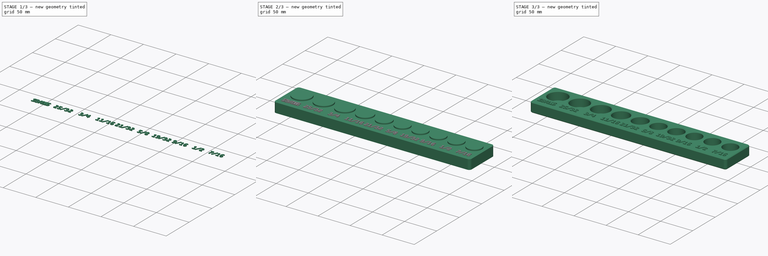
[diagram: build sequence overview — one tinted view per stage of 3, left to right]
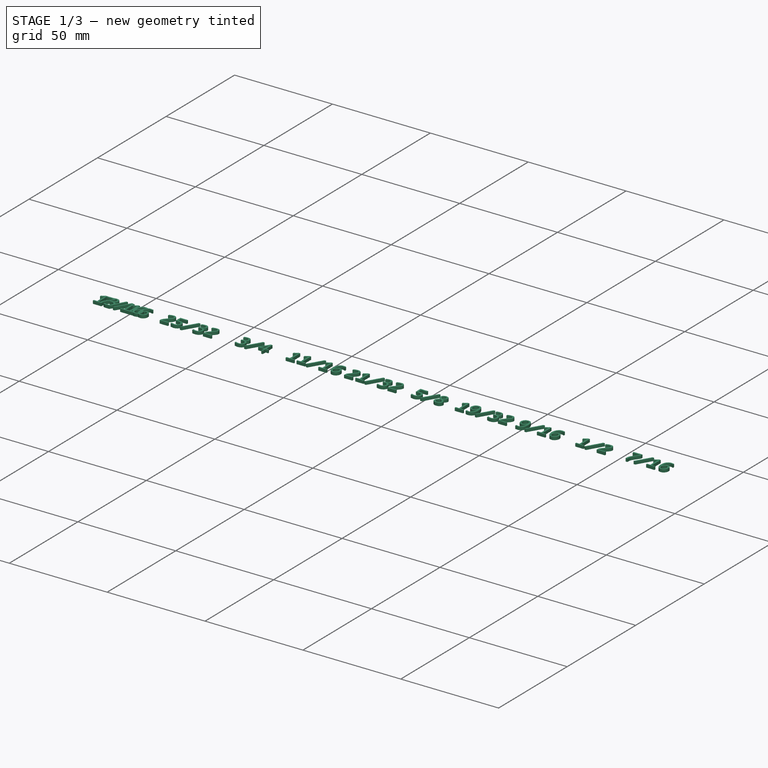
[diagram: stage 1 of 3 — iso view after this stage's code; geometry added in this stage tinted green]
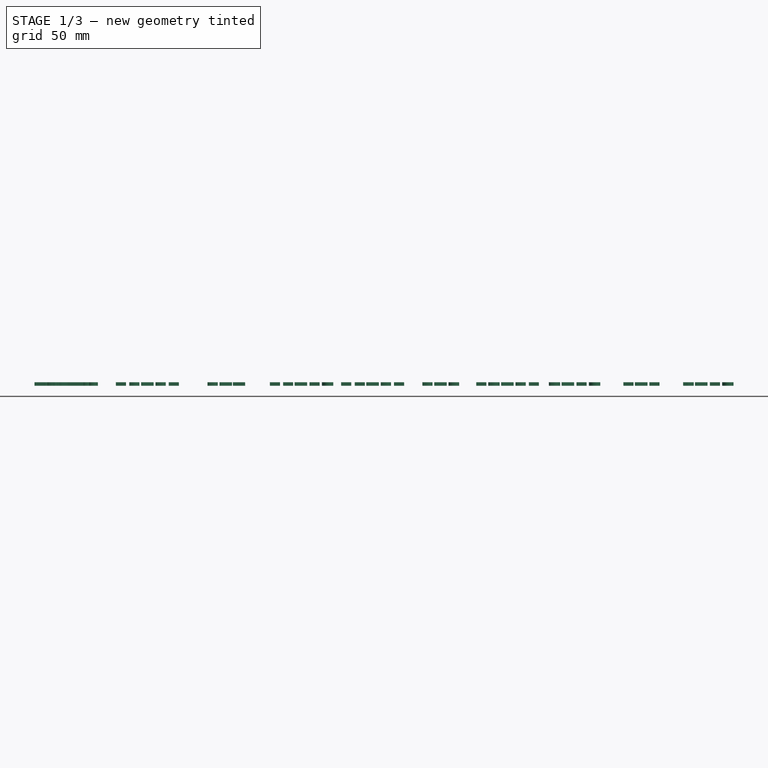
[diagram: stage 1 of 3 — front view after this stage's code; geometry added in this stage tinted green]
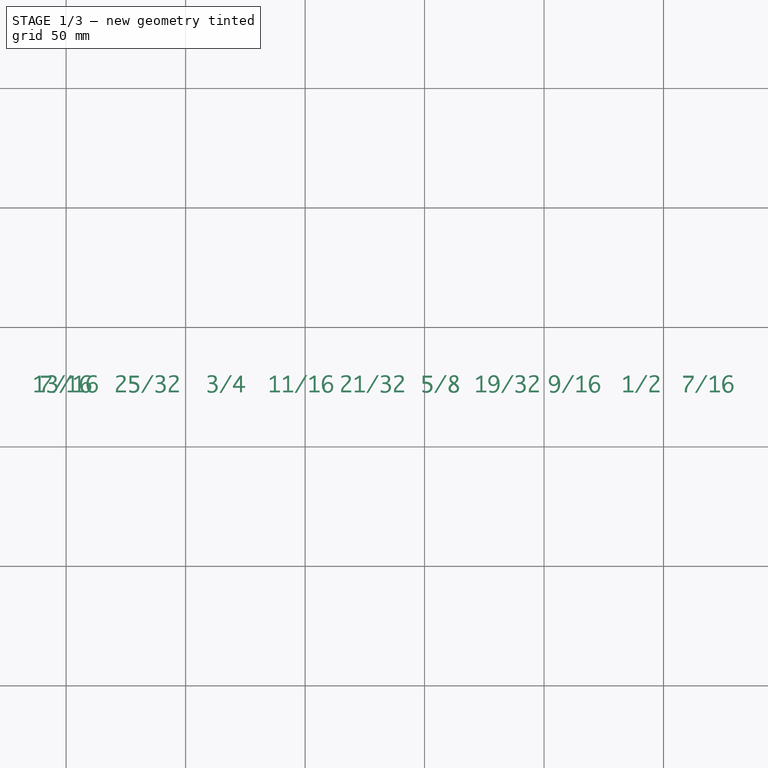
[diagram: stage 1 of 3 — top view after this stage's code; geometry added in this stage tinted green]
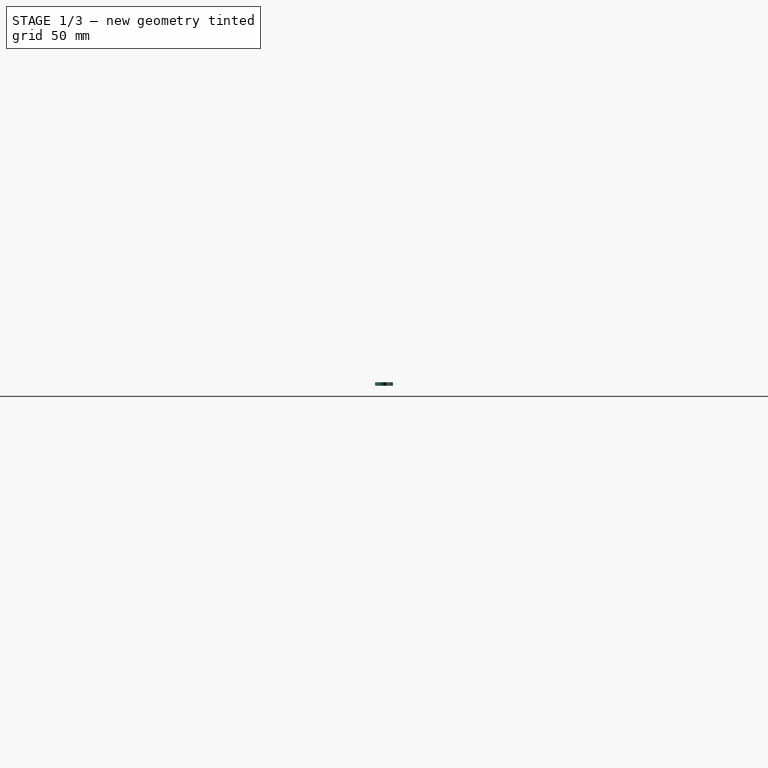
[diagram: stage 1 of 3 — right view after this stage's code; geometry added in this stage tinted green]
FCSTD DOCUMENT  (FreeCAD 0.22R38314 (Git))
Label: socket tray
License: All rights reserved
LicenseURL: http://en.wikipedia.org/wiki/All_rights_reserved
objects: Part::Extrusion×3, Sketcher::SketchObject×2, Part::FeaturePython×2, Spreadsheet::Sheet×1, Part::Cut×1, Part::Chamfer×1, Part::Part2DObjectPython×1
note: 10 computed .brp shape members not serialized (recipe doc carries the construction recipe); baked Part::Feature solids carry a one-line shape summary decoded from their .brp

FEATURE [Part::Part2DObjectPython] ShapeString  # Draft 2D object (typed FeaturePython)
  FontFile = /System/Library/Fonts/monaco.ttf
  Fuse = false
  Justification = 1
  JustificationReference = 0
  KeepLeftMargin = false
  MakeFace = true
  ObliqueAngle = 0
  Placement = pos=(0,-20.25,14.9) rot=(0,0,1;0rad)
  ScaleToSize = true
  Size = 7
  Tracking = 0
  expr: .Placement.Base.y = <<q>>.text_y
  expr: .Placement.Base.z = <<q>>.text_z
  expr: Size = <<q>>.text_pad / 2
FEATURE [Part::Extrusion] Extrude002
  Base = -> ShapeString
  Dir = (0,0,1)
  DirMode = 2
  FaceMakerClass = Part::FaceMakerBullseye
  FaceMakerMode = 3
  LengthFwd = 1.5
  LengthRev = 0
  Solid = false
  Symmetric = false
FEATURE [Part::FeaturePython] ParaSeries001  # WARN: FeaturePython — macro-defined, semantics opaque (R4)
  Alignment = 0
  CellStart = B2
  Count = 7
  DistributionLaw = 0
  EndInclusive = true
  ExposePlacement = false
  GeneratorMode = 0
  MarkerShape = 1
  MarkerSize = 0
  NumElements = 0
  Object = -> Extrude002
  ParameterRef = ShapeString.Placement.Base.x;ShapeString.String
  ParameterType = 2
  Recomputing = 0
  SpanEnd = 7
  SpanStart = 1
  SpreadsheetLink = -> Spreadsheet
  Step = 1
  Type = lattice2ParaSeries.LatticeParaSeries
  VSGVersion = 1
  Values = 0;13/16 | 34;25/32 | 67;3/4 | 98.5;11/16 | 128.25;21/32 | 156.75;5/8 | 184.75;19/32 | 212.75;9/16 | 240.75;1/2 | 268.75;7/16
  ValuesSource = 1
  isLattice = 0
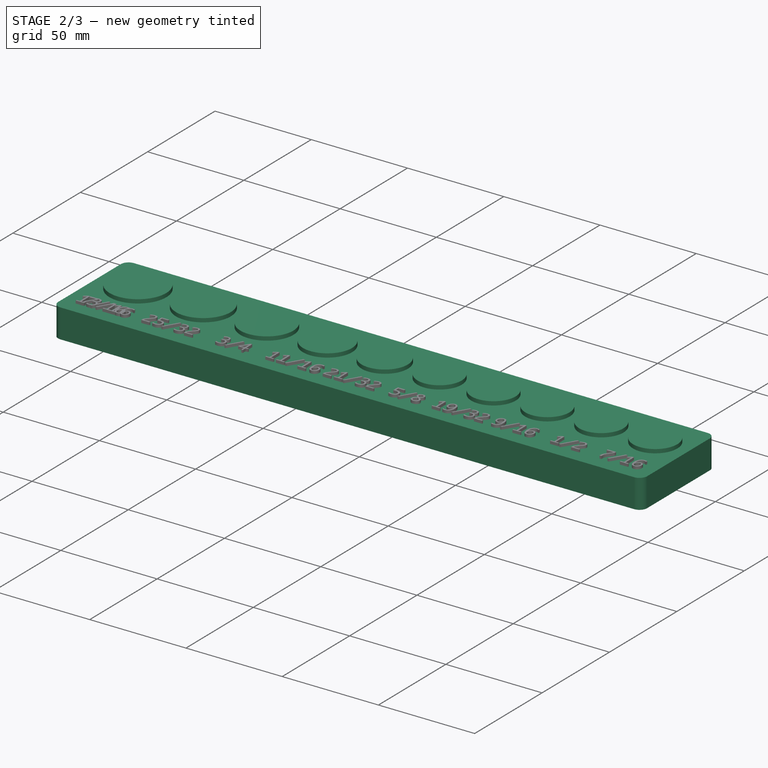
[diagram: stage 2 of 3 — iso view after this stage's code; geometry added in this stage tinted green]
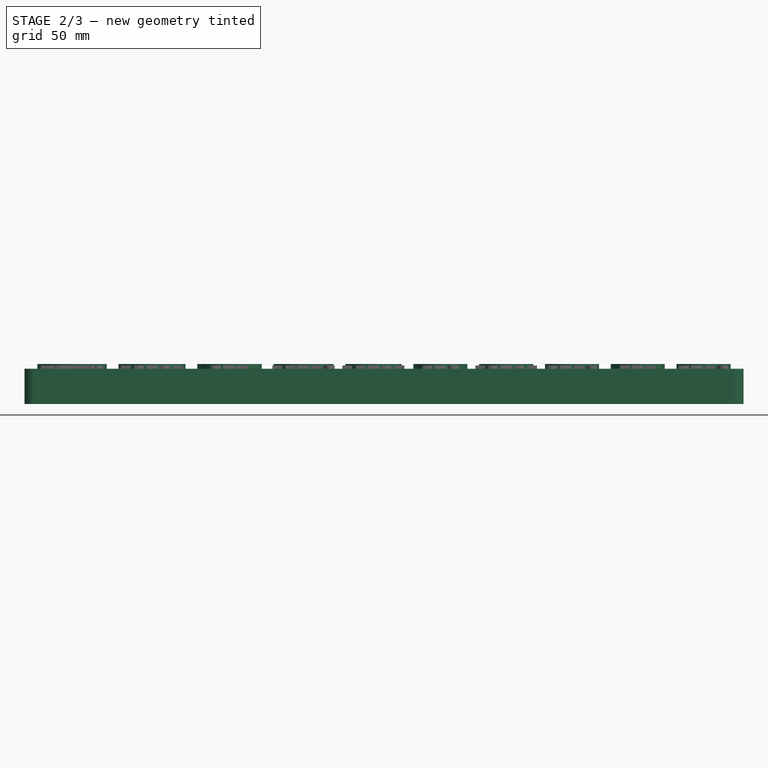
[diagram: stage 2 of 3 — front view after this stage's code; geometry added in this stage tinted green]
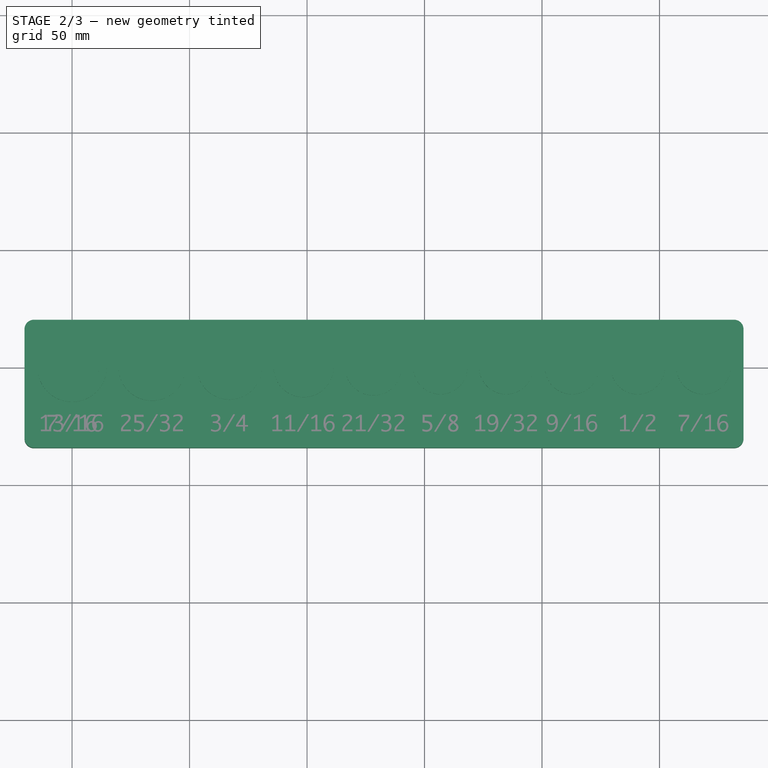
[diagram: stage 2 of 3 — top view after this stage's code; geometry added in this stage tinted green]
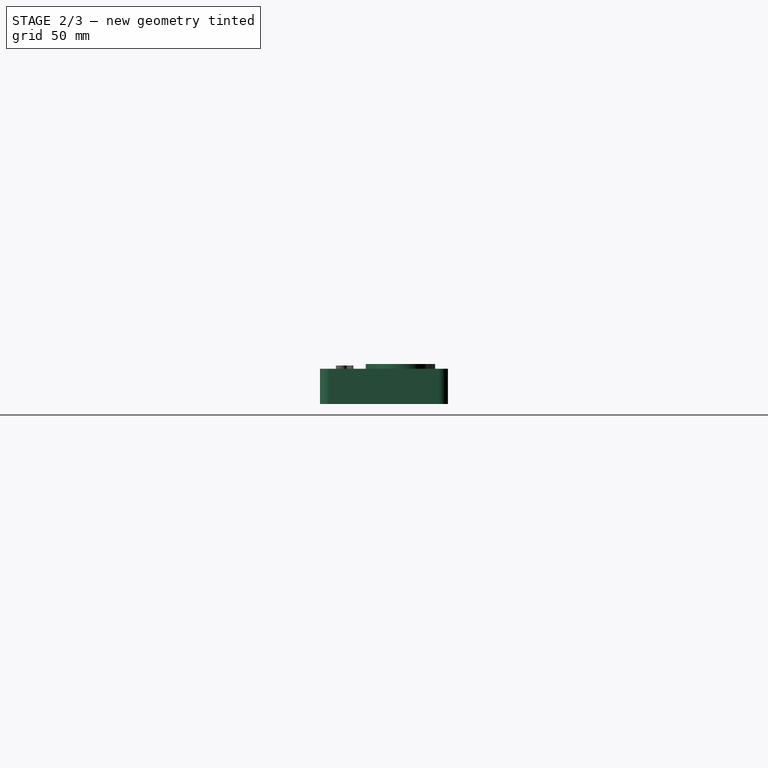
[diagram: stage 2 of 3 — right view after this stage's code; geometry added in this stage tinted green]
FEATURE [Spreadsheet::Sheet] Spreadsheet  label="q"
  cells = A1='offset socket; B1='offset text; D1='size; E1='text; F1='offsets; H1='count; A2==D2 > 0 ? <<%s;>> % F2 + <<%s>> % (D2 + socket_margin) : << >>; B2==D2 > 0 ? <<%s;>> % F2 + E2 : << >>; D2==.D23; E2==.E23; F2=0; H2==D2 > 0 ? 1 : 0; J2='spacing; K2(spacing)=6; A3==D3 > 0 ? <<%s;>> % F3 + <<%s>> % (D3 + socket_margin) : << >>; B3==D3 > 0 ? <<%s;>> % F3 + E3 : << >>; D3==.D24; E3==.E24; F3==D3 > 0 ? D2 / 2 + D3 / 2 + spacing : << >>; H3==D3 > 0 ? 1 : 0; J3='length; K3(length)==sum(D2:D19) + (items + 1) * spacing; A4==D4 > 0 ? <<%s;>> % F4 + <<%s>> % (D4 + socket_margin) : << >>; B4==D4 > 0 ? <<%s;>> % F4 + E4 : << >>; D4==.D25; E4==.E25; F4==D4 > 0 ? D3 / 2 + D4 / 2 + F3 + spacing : << >>; H4==D4 > 0 ? 1 : 0; J4='depth; K4(depth)==max(D2:D19) + 2 * spacing + text_pad; A5==D5 > 0 ? <<%s;>> % F5 + <<%s>> % (D5 + socket_margin) : << >>; B5==D5 > 0 ? <<%s;>> % F5 + E5 : << >>; D5==.D26; E5==.E26; F5==D5 > 0 ? D4 / 2 + D5 / 2 + F4 + spacing : << >>; H5==D5 > 0 ? 1 : 0; J5='left offset; K5(left_offset)==D2 / 2 + spacing; A6==D6 > 0 ? <<%s;>> % F6 + <<%s>> % (D6 + socket_margin) : << >>; B6==D6 > 0 ? <<%s;>> % F6 + E6 : << >>; D6==.D27; E6==.E27; F6==D6 > 0 ? D5 / 2 + D6 / 2 + F5 + spacing : << >>; H6==D6 > 0 ? 1 : 0; A7==D7 > 0 ? <<%s;>> % F7 + <<%s>> % (D7 + socket_margin) : << >>; B7==D7 > 0 ? <<%s;>> % F7 + E7 : << >>; D7==.D28; E7==.E28; F7==D7 > 0 ? D6 / 2 + D7 / 2 + F6 + spacing : << >>; H7==D7 > 0 ? 1 : 0; J7='text pad; K7(text_pad)=14; A8==D8 > 0 ? <<%s;>> % F8 + <<%s>> % (D8 + socket_margin) : << >>; B8==D8 > 0 ? <<%s;>> % F8 + E8 : << >>; D8==.D29; E8==.E29; F8==D8 > 0 ? D7 / 2 + D8 / 2 + F7 + spacing : << >>; H8==D8 > 0 ? 1 : 0; J8='radius; K8(radius)=4; A9==D9 > 0 ? <<%s;>> % F9 + <<%s>> % (D9 + socket_margin) : << >>; B9==D9 > 0 ? <<%s;>> % F9 + E9 : << >>; D9==.D30; E9==.E30; F9==D9 > 0 ? D8 / 2 + D9 / 2 + F8 + spacing : << >>; H9==D9 > 0 ? 1 : 0; J9='box height; K9(box_height)=15; A10==D10 > 0 ? <<%s;>> % F10 + <<%s>> % (D10 + socket_margin) : << >>; B10==D10 > 0 ? <<%s;>> % F10 + E10 : << >>; D10==.D31; E10==.E31; F10==D10 > 0 ? D9 / 2 + D10 / 2 + F9 + spacing : << >>; H10==D10 > 0 ? 1 : 0; J10='socket depth; K10(socket_depth)==box_height; A11==D11 > 0 ? <<%s;>> % F11 + <<%s>> % (D11 + socket_margin) : << >>; B11==D11 > 0 ? <<%s;>> % F11 + E11 : << >>; D11==.D32; E11==.E32; F11==D11 > 0 ? D10 / 2 + D11 / 2 + F10 + spacing : << >>; H11==D11 > 0 ? 1 : 0; J11='socket floor; K11(socket_floor)=2; A12==D12 > 0 ? <<%s;>> % F12 + <<%s>> % (D12 + socket_margin) : << >>; B12==D12 > 0 ? <<%s;>> % F12 + E12 : << >>; D12==.D33; F12==D12 > 0 ? D11 / 2 + D12 / 2 + F11 + spacing : << >>; H12==D12 > 0 ? 1 : 0; J12='socket margin; K12(socket_margin)=1; A13==D13 > 0 ? <<%s;>> % F13 + <<%s>> % (D13 + socket_margin) : << >>; B13==D13 > 0 ? <<%s;>> % F13 + E13 : << >>; D13==.D34; F13==D13 > 0 ? D12 / 2 + D13 / 2 + F12 + spacing : << >>; H13==D13 > 0 ? 1 : 0; A14==D14 > 0 ? <<%s;>> % F14 + <<%s>> % (D14 + socket_margin) : << >>; B14==D14 > 0 ? <<%s;>> % F14 + E14 : << >>; D14==.D35; F14==D14 > 0 ? D13 / 2 + D14 / 2 + F13 + spacing : << >>; H14==D14 > 0 ? 1 : 0; J14='items; K14(items)==sum(H2:H19); A15==D15 > 0 ? <<%s;>> % F15 + <<%s>> % (D15 + socket_margin) : << >>; B15==D15 > 0 ? <<%s;>> % F15 + E15 : << >>; D15==.D36; F15==D15 > 0 ? D14 / 2 + D15 / 2 + F14 + spacing : << >>; H15==D15 > 0 ? 1 : 0; A16==D16 > 0 ? <<%s;>> % F16 + <<%s>> % (D16 + socket_margin) : << >>; B16==D16 > 0 ? <<%s;>> % F16 + E16 : << >>; D16==.D37; F16==D16 > 0 ? D15 / 2 + D16 / 2 + F15 + spacing : << >>; H16==D16 > 0 ? 1 : 0; J16='text y; K16(text_y)==-D2 / 2 - spacing; A17==D17 > 0 ? <<%s;>> % F17 + <<%s>> % (D17 + socket_margin) : << >>; B17==D17 > 0 ? <<%s;>> % F17 + E17 : << >>; D17==.D38; F17==D17 > 0 ? D16 / 2 + D17 / 2 + F16 + spacing : << >>; H17==D17 > 0 ? 1 : 0; J17='text z; K17(text_z)==box_height - 0.1; A18==D18 > 0 ? <<%s;>> % F18 + <<%s>> % (D18 + socket_margin) : << >>; B18==D18 > 0 ? <<%s;>> % F18 + E18 : << >>; D18==.D39; F18==D18 > 0 ? D17 / 2 + D18 / 2 + F17 + spacing : << >>; H18==D18 > 0 ? 1 : 0; J18='text thickness; K18(text_thickness)=1; A19==D19 > 0 ? <<%s;>> % F19 + <<%s>> % (D19 + socket_margin) : << >>; B19==D19 > 0 ? <<%s;>> % F19 + E19 : << >>; D19==.D40; F19==D19 > 0 ? D18 / 2 + D19 / 2 + F18 + spacing : << >>; H19==D19 > 0 ? 1 : 0; A22='large 1/2 drive; D22='small 1/2 drive; J22='copy and fill to create another; A23=50; B23='1-1/2; D23=28.5; E23='13/16; J23=0; A24=42; B24='1-1/4; D24=27.5; E24='25/32; J24=0; A25=38; B25='1-1/8; D25=26.5; E25='3/4; J25=0; A26=36; B26='1/1-16; D26=24.5; E26='11/16; J26=0; A27=33.5; B27='1; D27=23; E27='21/32; J27=0; A28=32; B28='15/16; D28=22; E28='5/8; J28=0; A29=30; B29='7/8; D29=22; E29='19/32; J29=0; A30=0; D30=22; E30='9/16; J30=0; A31=0; D31=22; E31='1/2; J31=0; A32=0; D32=22; E32='7/16; J32=0; A33=0; D33=0; J33=0; A34=0; D34=0; J34=0; A35=0; D35=0; J35=0; A36=0; D36=0; J36=0; A37=0; D37=0; J37=0; A38=0; +11 more cells
  expr: .cells.Bind.D2.E19 = tuple(.cells; <<D23>>; <<E40>>)
FEATURE [Sketcher::SketchObject] Sketch001  label="box"
  FullyConstrained = true
  expr: Constraints[27] = <<q>>.radius
  expr: Constraints[3] = <<q>>.length
  expr: Constraints[4] = <<q>>.left_offset
  expr: Constraints[6] = <<q>>.left_offset
  expr: Constraints[7] = <<q>>.depth
  sketch-geometry (12):
    g0: LineSegment StartX=-20.25 StartY=16.25 StartZ=0 EndX=-20.25 EndY=-30.25 EndZ=0
    g1: LineSegment StartX=-16.25 StartY=-34.25 StartZ=0 EndX=281.75 EndY=-34.25 EndZ=0
    g2: LineSegment StartX=285.75 StartY=-30.25 StartZ=0 EndX=285.75 EndY=16.25 EndZ=0
    g3: LineSegment StartX=281.75 StartY=20.25 StartZ=0 EndX=-16.25 EndY=20.25 EndZ=0
    g4: ArcOfCircle CenterX=281.75 CenterY=16.25 CenterZ=0 NormalX=0 NormalY=0 NormalZ=1 AngleXU=0 Radius=4 StartAngle=0 EndAngle=1.5708
    g5: GeomPoint X=285.75 Y=20.25 Z=0
    g6: ArcOfCircle CenterX=281.75 CenterY=-30.25 CenterZ=0 NormalX=0 NormalY=0 NormalZ=1 AngleXU=0 Radius=4 StartAngle=4.71239 EndAngle=6.28319
    g7: GeomPoint X=285.75 Y=-34.25 Z=0
    g8: ArcOfCircle CenterX=-16.25 CenterY=-30.25 CenterZ=0 NormalX=0 NormalY=0 NormalZ=1 AngleXU=0 Radius=4 StartAngle=3.14159 EndAngle=4.71239
    g9: GeomPoint X=-20.25 Y=-34.25 Z=0
    g10: ArcOfCircle CenterX=-16.25 CenterY=16.25 CenterZ=0 NormalX=0 NormalY=0 NormalZ=1 AngleXU=0 Radius=4 StartAngle=1.5708 EndAngle=3.14159
    g11: GeomPoint X=-20.25 Y=20.25 Z=0
  constraints (28):
    c: Vertical(g2)
    c: Horizontal(g1)
    c: Horizontal(g3)
    c: Distance(g11,g5) = 306
    c: DistanceX(g11,g-1) = 20.25
    c: Vertical(g0)
    c: DistanceY(g-1,g11) = 20.25
    c: DistanceY(g9,g11) = 54.5
    c: PointOnObject(g5,g3)
    c: PointOnObject(g5,g2)
    c: Tangent(g3,g4) = -1.5708
    c: Tangent(g2,g4) = -1.5708
    c: PointOnObject(g7,g1)
    c: PointOnObject(g7,g2)
    c: Tangent(g1,g6) = -1.5708
    c: Tangent(g2,g6) = -1.5708
    c: PointOnObject(g9,g1)
    c: PointOnObject(g9,g0)
    c: Tangent(g1,g8) = -1.5708
    c: Tangent(g0,g8) = -1.5708
    c: PointOnObject(g11,g0)
    c: PointOnObject(g11,g3)
    c: Tangent(g0,g10) = -1.5708
    c: Tangent(g3,g10) = -1.5708
    c: Equal(g4,g6)
    c: Equal(g4,g8)
    c: Equal(g4,g10)
    c: Radius(g4) = 4
FEATURE [Sketcher::SketchObject] Sketch  label="socket"
  FullyConstrained = true
  Placement = pos=(0,0,2) rot=(0,0,1;0rad)
  expr: .Placement.Base.z = <<q>>.socket_floor
  sketch-geometry (1):
    g0: Circle CenterX=0 CenterY=0 CenterZ=0 NormalX=0 NormalY=0 NormalZ=1 AngleXU=0 Radius=11.5
  constraints (2):
    c: Coincident(g0,g-1)
    c: Diameter(g0) = 23  'SocketDiameter'
FEATURE [Part::Extrusion] Extrude  label="socket template extrusion"
  Base = -> Sketch
  Dir = (0,0,1)
  DirMode = 2
  FaceMakerClass = Part::FaceMakerBullseye
  FaceMakerMode = 3
  LengthFwd = 15
  LengthRev = 0
  Solid = true
  Symmetric = false
  expr: LengthFwd = <<q>>.box_height
FEATURE [Part::FeaturePython] ParaSeries  label="socket extrusion"  # WARN: FeaturePython — macro-defined, semantics opaque (R4)
  Alignment = 0
  CellStart = A2
  Count = 7
  DistributionLaw = 0
  EndInclusive = true
  ExposePlacement = false
  GeneratorMode = 0
  MarkerShape = 1
  MarkerSize = 0
  NumElements = 0
  Object = -> Extrude
  ParameterRef = Sketch.Placement.Base.x;Sketch.Constraints.SocketDiameter
  ParameterType = 0
  Recomputing = 0
  SpanEnd = 7
  SpanStart = 1
  SpreadsheetLink = -> Spreadsheet
  Step = 1
  Type = lattice2ParaSeries.LatticeParaSeries
  VSGVersion = 1
  Values = 0;29.5 | 34;28.5 | 67;27.5 | 98.5;25.5 | 128.25;24 | 156.75;23 | 184.75;23 | 212.75;23 | 240.75;23 | 268.75;23
  ValuesSource = 1
  isLattice = 0
FEATURE [Part::Extrusion] Extrude001  label="box extrusion"
  Base = -> Sketch001
  Dir = (0,0,1)
  DirMode = 2
  FaceMakerClass = Part::FaceMakerBullseye
  FaceMakerMode = 3
  LengthFwd = 15
  LengthRev = 0
  Solid = true
  Symmetric = false
  expr: LengthFwd = <<q>>.box_height
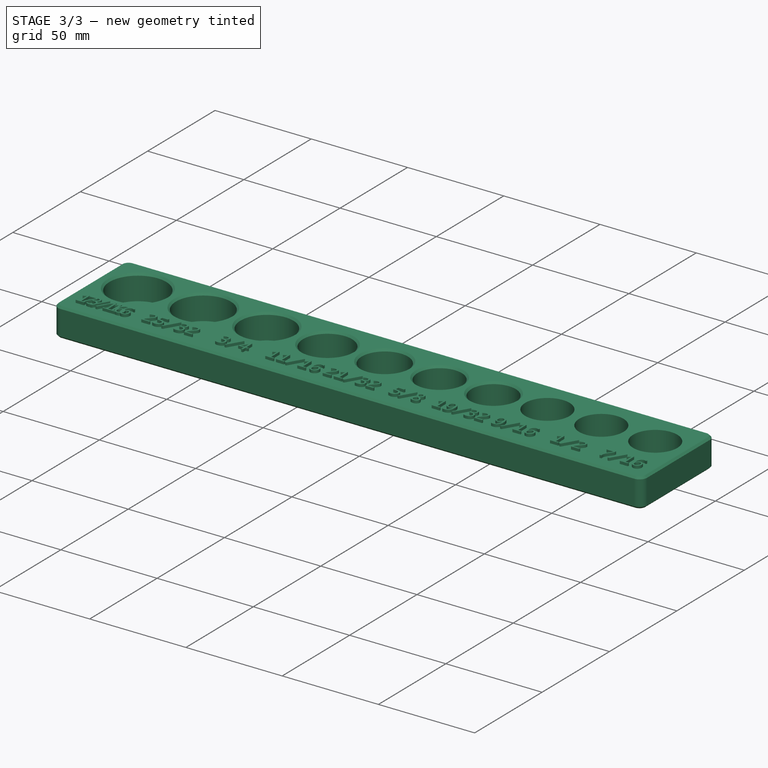
[diagram: stage 3 of 3 — iso view after this stage's code; geometry added in this stage tinted green]
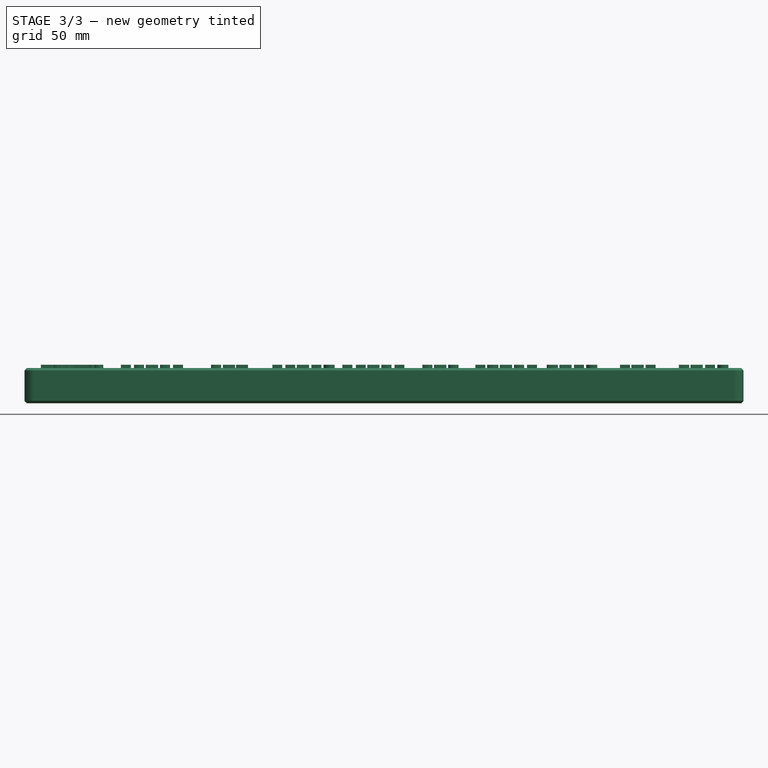
[diagram: stage 3 of 3 — front view after this stage's code; geometry added in this stage tinted green]
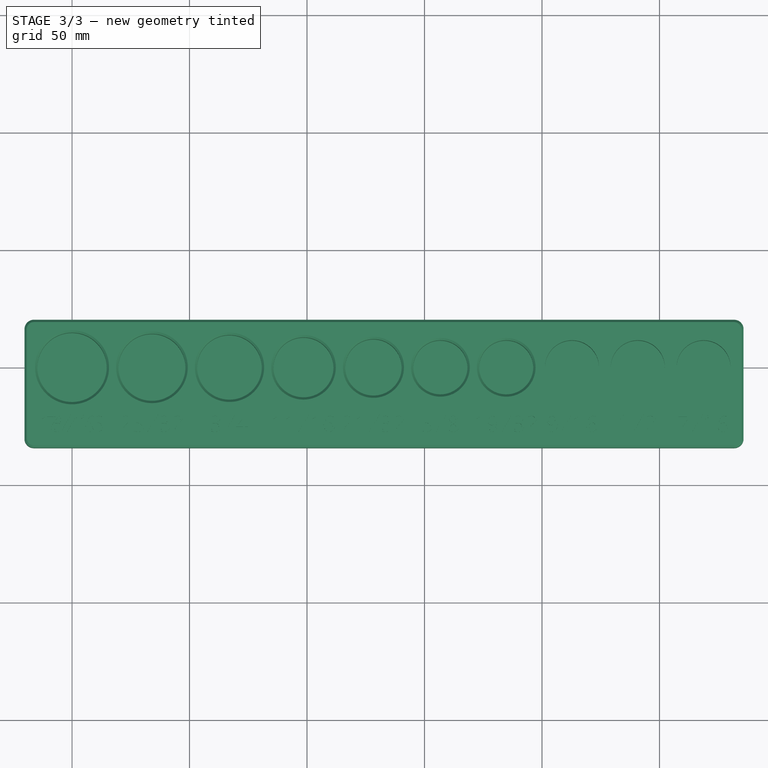
[diagram: stage 3 of 3 — top view after this stage's code; geometry added in this stage tinted green]
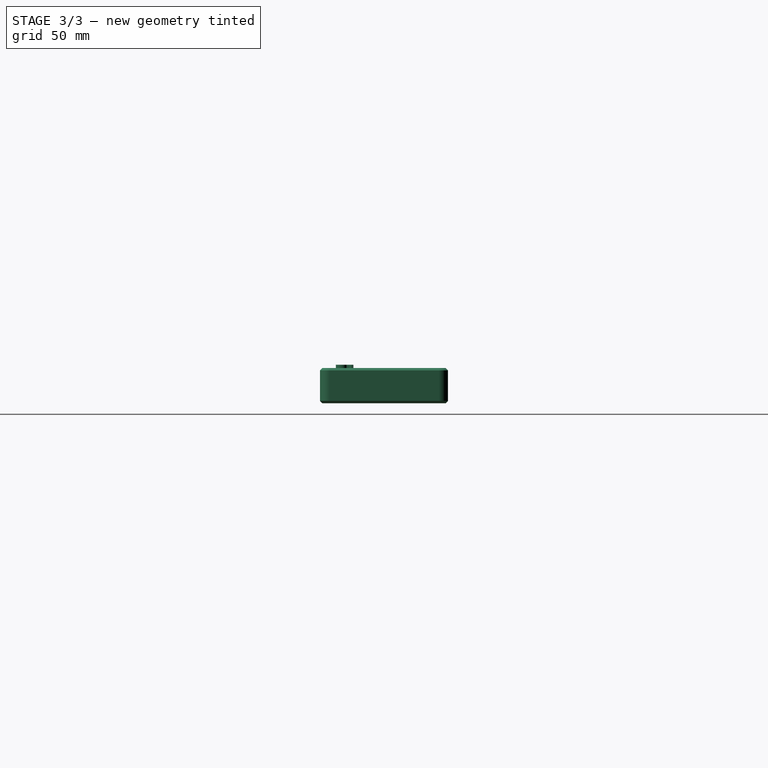
[diagram: stage 3 of 3 — right view after this stage's code; geometry added in this stage tinted green]
FEATURE [Part::Cut] Cut
  Base = -> Extrude001
  Tool = -> ParaSeries
FEATURE [Part::Chamfer] Chamfer
  Base = -> Cut
  EdgeLinks = -> Cut [?Edge3,?Edge4,Edge6,Edge7,?Edge9,?Edge10,?Edge11,?Edge12,?Edge13,?Edge14,?Edge15,?Edge16,?Edge17,?Edge18,?Edge19,?Edge20,?Edge21,?Edge22,?Edge23,?Edge24,?Edge25,?Edge26,?Edge27,?Edge32,?Edge34,?Edge36,?Edge38,?Edge40,?Edge42,?Edge44]
  Edges = 30 edges r=1: [Edge3,Edge4,Edge6,Edge7,Edge9,Edge10,Edge11,Edge12,Edge13,Edge14,Edge15,Edge16,Edge17,Edge18,Edge19,Edge20,Edge21,Edge22,Edge23,Edge24,Edge25,Edge26,Edge27,Edge32,Edge34,Edge36,Edge38,Edge40,Edge42,Edge44]
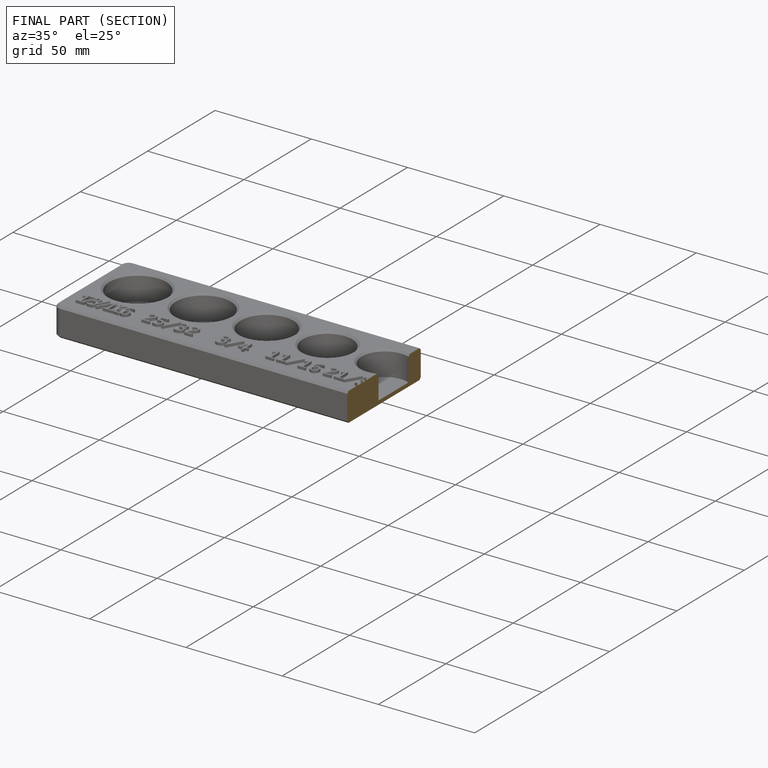
[diagram: finished part — half-section view (interior)]
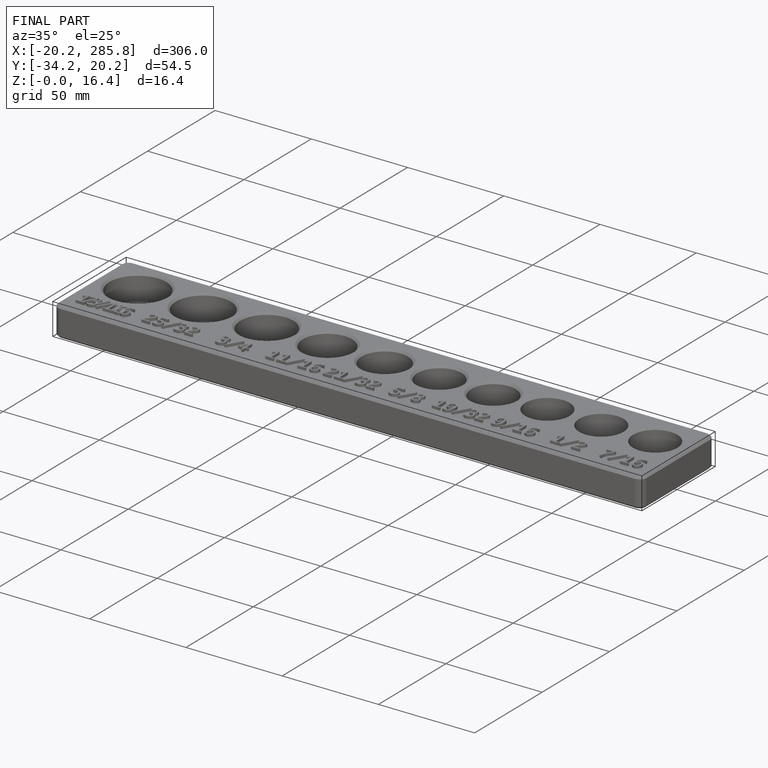
[diagram: finished part — iso view with bounding-box wireframe]
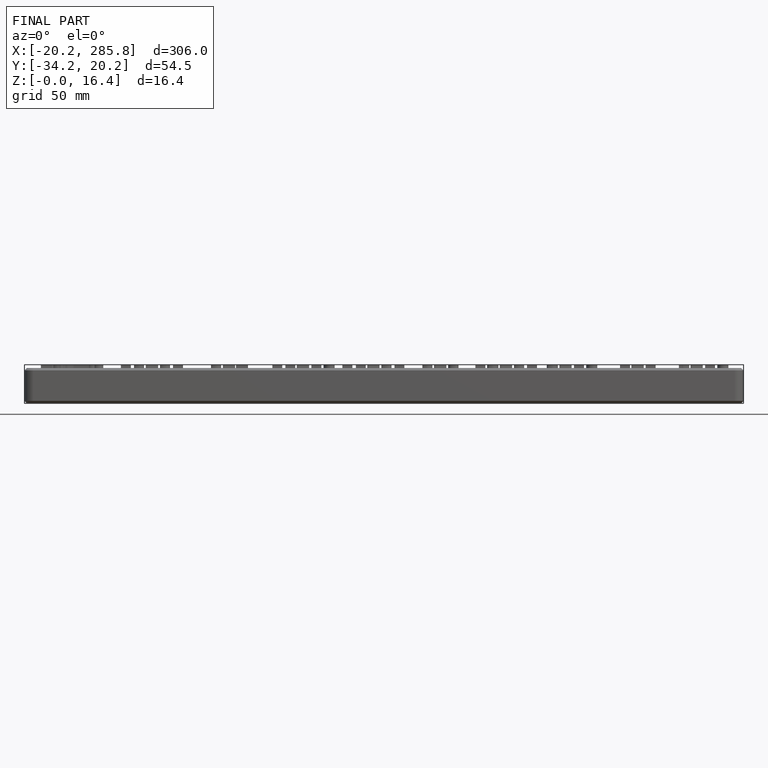
[diagram: finished part — front view with bounding-box wireframe]
